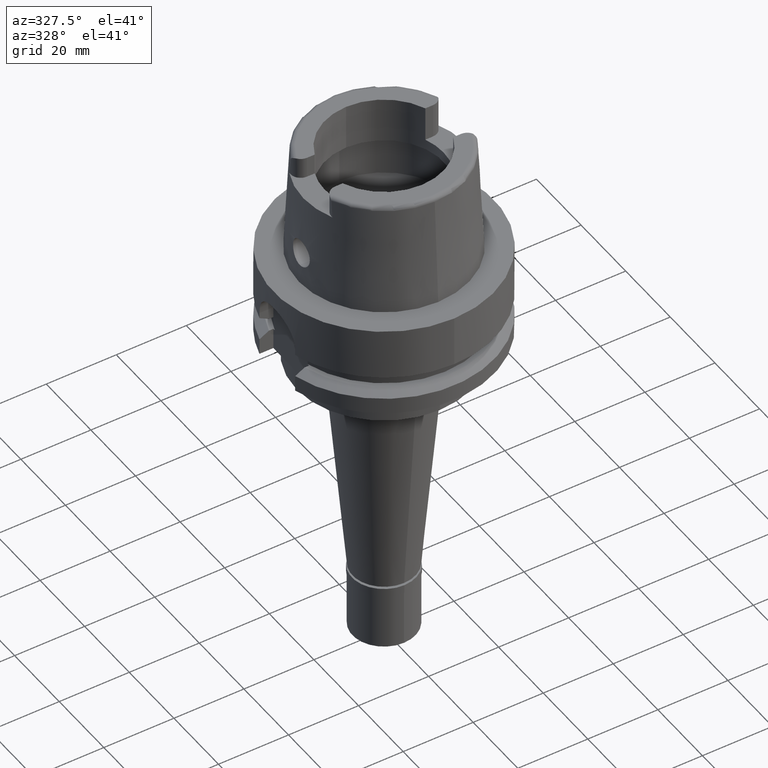
[diagram: clean part render]
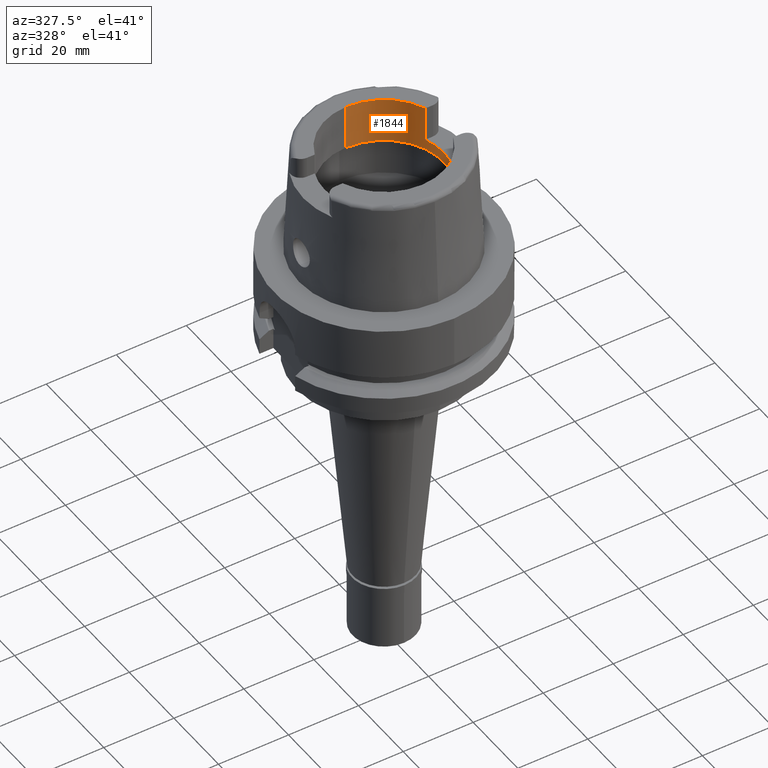
[diagram: same view with one face highlighted and labeled with its STEP entity id]
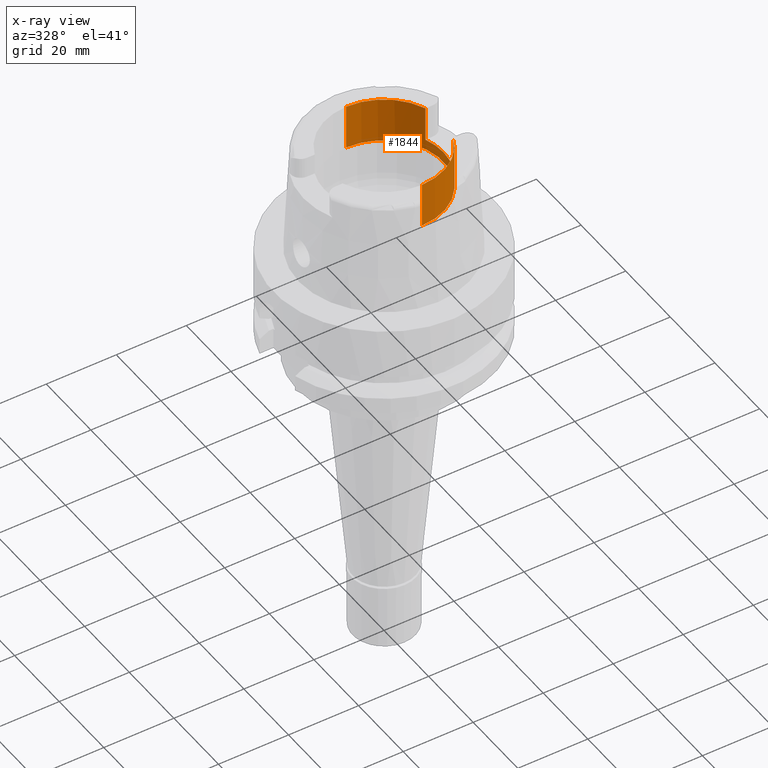
[diagram: x-ray of the same camera — body ghosted, the highlighted face saturated]
A machine part, auxiliary view. The second image highlights one B-rep face of the part: STEP entity #1844.
The next image is the same camera in x-ray: the body ghosted, the highlighted face saturated — about 0% of this face is hidden behind the body in this view.
In plain terms, the highlighted cylindrical surface (partial cylindrical patch) has radius 17 mm, axis along (0, 0, -1).
Its self-contained STEP definition (entity closure, byte-faithful):
#118 = VERTEX_POINT ( 'NONE', #1151 ) ;
#129 = CARTESIAN_POINT ( 'NONE',  ( 0.0000000000000000000, 0.0000000000000000000, 39.37000000000000455 ) ) ;
#186 = DIRECTION ( 'NONE',  ( 0.0000000000000000000, 0.0000000000000000000, -1.000000000000000000 ) ) ;
#251 = VERTEX_POINT ( 'NONE', #2025 ) ;
#271 = DIRECTION ( 'NONE',  ( 0.0000000000000000000, 1.000000000000000000, 0.0000000000000000000 ) ) ;
#311 = CIRCLE ( 'NONE', #3350, 17.00000000000000000 ) ;
#413 = CARTESIAN_POINT ( 'NONE',  ( 0.0000000000000000000, 17.00000000000000000, 18.99602540378000270 ) ) ;
#433 = VECTOR ( 'NONE', #3609, 1000.000000000000000 ) ;
#511 = VECTOR ( 'NONE', #656, 1000.000000000000000 ) ;
#631 = EDGE_CURVE ( 'NONE', #4647, #889, #311, .T. ) ;
#656 = DIRECTION ( 'NONE',  ( 0.0000000000000000000, 0.0000000000000000000, -1.000000000000000000 ) ) ;
#705 = LINE ( 'NONE', #2802, #5271 ) ;
#889 = VERTEX_POINT ( 'NONE', #3063 ) ;
#951 = AXIS2_PLACEMENT_3D ( 'NONE', #129, #186, #1002 ) ;
#1002 = DIRECTION ( 'NONE',  ( 0.0000000000000000000, -1.000000000000000000, 0.0000000000000000000 ) ) ;
#1046 = VERTEX_POINT ( 'NONE', #4379 ) ;
#1089 = ORIENTED_EDGE ( 'NONE', *, *, #2728, .T. ) ;
#1151 = CARTESIAN_POINT ( 'NONE',  ( 15.80149043602999903, -6.270000000000000462, 32.00000000000000000 ) ) ;
#1241 = EDGE_LOOP ( 'NONE', ( #1423, #2513, #4534, #1089, #3226, #3857, #3721, #5079 ) ) ;
#1423 = ORIENTED_EDGE ( 'NONE', *, *, #1513, .F. ) ;
#1513 = EDGE_CURVE ( 'NONE', #4647, #1046, #4496, .T. ) ;
#1540 = CARTESIAN_POINT ( 'NONE',  ( 0.0000000000000000000, 0.0000000000000000000, 22.00000000000000000 ) ) ;
#1768 = EDGE_CURVE ( 'NONE', #3120, #889, #3818, .T. ) ;
#1805 = CIRCLE ( 'NONE', #3995, 17.00000000000000000 ) ;
#1844 = ADVANCED_FACE ( 'NONE', ( #4298 ), #1857, .F. ) ;
#1857 = CYLINDRICAL_SURFACE ( 'NONE', #951, 17.00000000000000000 ) ;
#1858 = AXIS2_PLACEMENT_3D ( 'NONE', #5359, #3260, #2784 ) ;
#2007 = DIRECTION ( 'NONE',  ( 0.0000000000000000000, 0.0000000000000000000, 1.000000000000000000 ) ) ;
#2025 = CARTESIAN_POINT ( 'NONE',  ( 0.0000000000000000000, -17.00000000000000000, 32.00000000000000000 ) ) ;
#2041 = CIRCLE ( 'NONE', #1858, 17.00000000000000000 ) ;
#2061 = DIRECTION ( 'NONE',  ( 0.0000000000000000000, -7.376457760500000442E-14, 1.000000000000000000 ) ) ;
#2073 = AXIS2_PLACEMENT_3D ( 'NONE', #1540, #2378, #4899 ) ;
#2090 = EDGE_CURVE ( 'NONE', #2134, #1046, #4075, .T. ) ;
#2134 = VERTEX_POINT ( 'NONE', #3121 ) ;
#2346 = VERTEX_POINT ( 'NONE', #4457 ) ;
#2378 = DIRECTION ( 'NONE',  ( 0.0000000000000000000, 0.0000000000000000000, 1.000000000000000000 ) ) ;
#2385 = CARTESIAN_POINT ( 'NONE',  ( 15.80149043602999903, 6.270000000000000462, 32.00000000000000000 ) ) ;
#2396 = EDGE_CURVE ( 'NONE', #2346, #251, #3223, .T. ) ;
#2434 = DIRECTION ( 'NONE',  ( 0.0000000000000000000, 0.0000000000000000000, 1.000000000000000000 ) ) ;
#2513 = ORIENTED_EDGE ( 'NONE', *, *, #631, .T. ) ;
#2728 = EDGE_CURVE ( 'NONE', #3120, #2346, #1805, .T. ) ;
#2784 = DIRECTION ( 'NONE',  ( 0.0000000000000000000, -1.000000000000000000, 0.0000000000000000000 ) ) ;
#2796 = CARTESIAN_POINT ( 'NONE',  ( 0.0000000000000000000, -17.00000000000000000, 18.99602540378000270 ) ) ;
#2802 = CARTESIAN_POINT ( 'NONE',  ( 15.80149043602999903, -6.270000000000000462, 22.00000000000000000 ) ) ;
#2805 = CARTESIAN_POINT ( 'NONE',  ( 0.0000000000000000000, 0.0000000000000000000, 18.99602540378000270 ) ) ;
#3030 = CARTESIAN_POINT ( 'NONE',  ( 15.80149043602999903, 6.270000000000000462, 32.00000000000000000 ) ) ;
#3063 = CARTESIAN_POINT ( 'NONE',  ( 0.0000000000000000000, 17.00000000000000000, 32.00000000000000000 ) ) ;
#3120 = VERTEX_POINT ( 'NONE', #4377 ) ;
#3121 = CARTESIAN_POINT ( 'NONE',  ( 15.80149043602999903, -6.270000000000000462, 22.00000000000000000 ) ) ;
#3223 = LINE ( 'NONE', #2796, #433 ) ;
#3226 = ORIENTED_EDGE ( 'NONE', *, *, #2396, .T. ) ;
#3260 = DIRECTION ( 'NONE',  ( 0.0000000000000000000, 0.0000000000000000000, 1.000000000000000000 ) ) ;
#3350 = AXIS2_PLACEMENT_3D ( 'NONE', #3725, #2434, #5002 ) ;
#3609 = DIRECTION ( 'NONE',  ( 0.0000000000000000000, 7.376457760500000442E-14, 1.000000000000000000 ) ) ;
#3721 = ORIENTED_EDGE ( 'NONE', *, *, #4266, .F. ) ;
#3725 = CARTESIAN_POINT ( 'NONE',  ( 0.0000000000000000000, 0.0000000000000000000, 32.00000000000000000 ) ) ;
#3818 = LINE ( 'NONE', #413, #4770 ) ;
#3857 = ORIENTED_EDGE ( 'NONE', *, *, #4997, .T. ) ;
#3995 = AXIS2_PLACEMENT_3D ( 'NONE', #2805, #4821, #271 ) ;
#4075 = CIRCLE ( 'NONE', #2073, 17.00000000000000000 ) ;
#4266 = EDGE_CURVE ( 'NONE', #2134, #118, #705, .T. ) ;
#4298 = FACE_OUTER_BOUND ( 'NONE', #1241, .T. ) ;
#4377 = CARTESIAN_POINT ( 'NONE',  ( 0.0000000000000000000, 17.00000000000000000, 18.99602540378000270 ) ) ;
#4379 = CARTESIAN_POINT ( 'NONE',  ( 15.80149043602999903, 6.270000000000000462, 22.00000000000000000 ) ) ;
#4457 = CARTESIAN_POINT ( 'NONE',  ( 0.0000000000000000000, -17.00000000000000000, 18.99602540378000270 ) ) ;
#4496 = LINE ( 'NONE', #2385, #511 ) ;
#4534 = ORIENTED_EDGE ( 'NONE', *, *, #1768, .F. ) ;
#4647 = VERTEX_POINT ( 'NONE', #3030 ) ;
#4770 = VECTOR ( 'NONE', #2061, 1000.000000000000000 ) ;
#4821 = DIRECTION ( 'NONE',  ( 0.0000000000000000000, 0.0000000000000000000, -1.000000000000000000 ) ) ;
#4899 = DIRECTION ( 'NONE',  ( 0.9294994374136111848, -0.3688235294118045182, 0.0000000000000000000 ) ) ;
#4997 = EDGE_CURVE ( 'NONE', #251, #118, #2041, .T. ) ;
#5002 = DIRECTION ( 'NONE',  ( 0.9294994374136111848, 0.3688235294118045182, 0.0000000000000000000 ) ) ;
#5079 = ORIENTED_EDGE ( 'NONE', *, *, #2090, .T. ) ;
#5271 = VECTOR ( 'NONE', #2007, 1000.000000000000000 ) ;
#5359 = CARTESIAN_POINT ( 'NONE',  ( 0.0000000000000000000, 0.0000000000000000000, 32.00000000000000000 ) ) ;